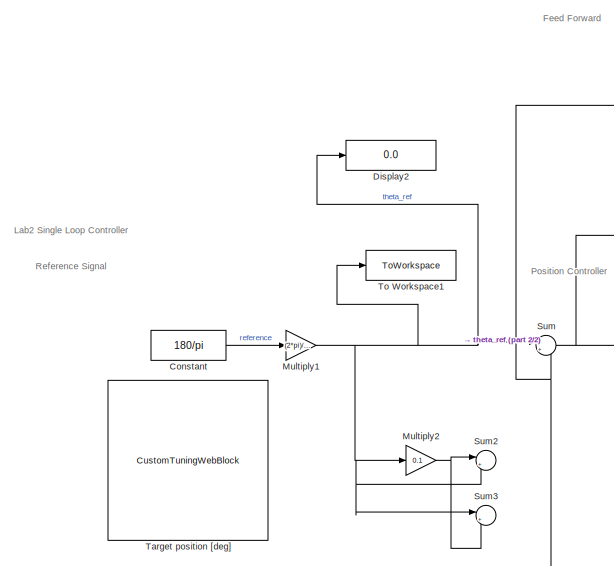
[diagram: root canvas - part 1/2, middle left region]
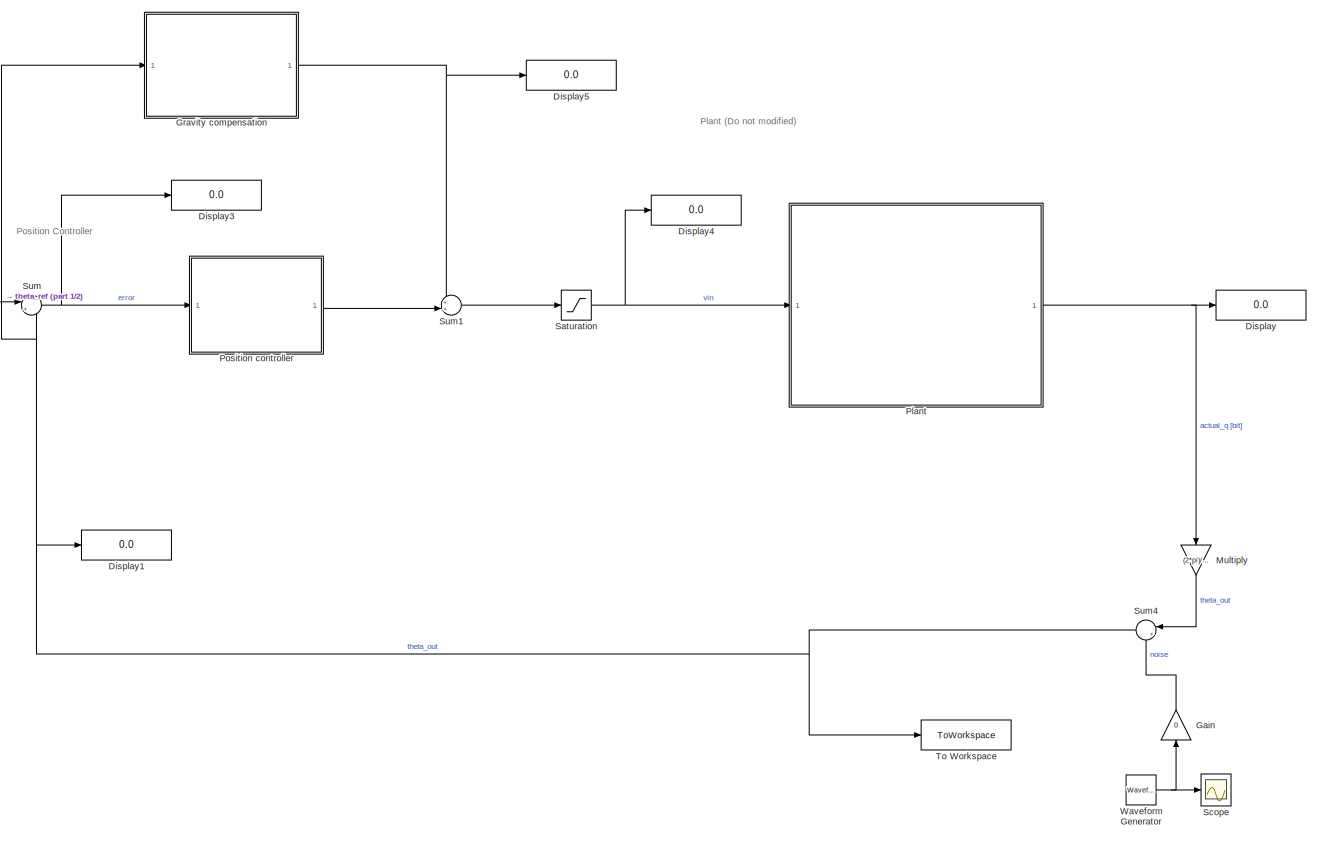
[diagram: root canvas - part 2/2, center side, full height]
MODEL slx_285aa19b5209
KIND model
CONFIG AbsTol = auto
CONFIG EnableMultiTasking = off
CONFIG FixedStep = auto
CONFIG MaxStep = 0.01
CONFIG MinStep = auto
CONFIG RelTol = 1e-3
CONFIG SampleTimeConstraint = Unconstrained
CONFIG SolverName = ode45
CONFIG StartTime = 0.0
CONFIG StopTime = 15
BLOCK [Constant] Constant
  SampleTime = -1
  Value = 180/pi
BLOCK [Display] Display
  Decimation = 1
BLOCK [Display] Display1
  Decimation = 1
BLOCK [Display] Display2
  Decimation = 1
BLOCK [Display] Display3
  Decimation = 1
BLOCK [Display] Display4
  Decimation = 1
BLOCK [Display] Display5
  Decimation = 1
BLOCK [Gain] Gain
  Gain = 0
  NameLocation = right
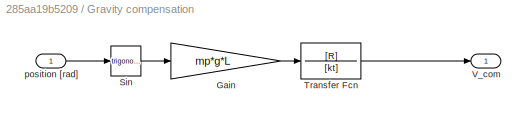
BLOCK [SubSystem] Gravity compensation
BLOCK [Gain] Gravity compensation/Gain
  Gain = mp*g*L
BLOCK [Trigonometry] Gravity compensation/Sin
BLOCK [TransferFcn] Gravity compensation/Transfer Fcn
  Denominator = [kt]
  Numerator = [R]
BLOCK [Outport] Gravity compensation/V_com
BLOCK [Inport] Gravity compensation/position [rad]
BLOCK [Gain] Multiply
  Gain = (2*pi)/4095
  NameLocation = right
BLOCK [Gain] Multiply1
  Gain = (2*pi)/360
BLOCK [Gain] Multiply2
  Gain = 0.1
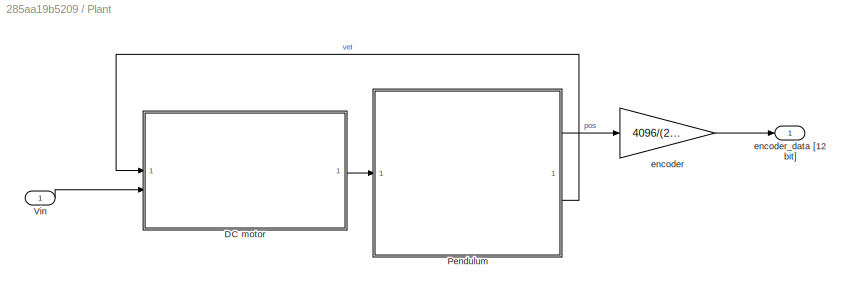
BLOCK [SubSystem] Plant
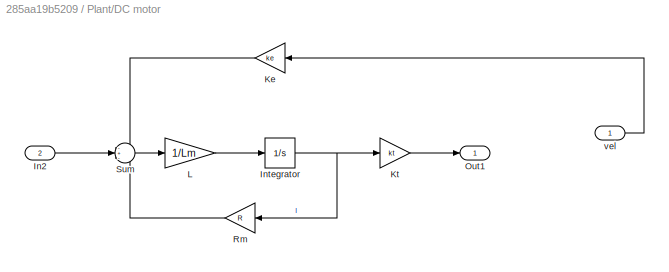
BLOCK [SubSystem] Plant/DC motor
BLOCK [Inport] Plant/DC motor/In2
  Port = 2
BLOCK [Integrator] Plant/DC motor/Integrator
BLOCK [Gain] Plant/DC motor/Ke
  Gain = ke
BLOCK [Gain] Plant/DC motor/Kt
  Gain = kt
BLOCK [Gain] Plant/DC motor/L
  Gain = 1/Lm
BLOCK [Outport] Plant/DC motor/Out1
BLOCK [Gain] Plant/DC motor/Rm
  Gain = R
BLOCK [Sum] Plant/DC motor/Sum
  Inputs = -+-
BLOCK [Inport] Plant/DC motor/vel
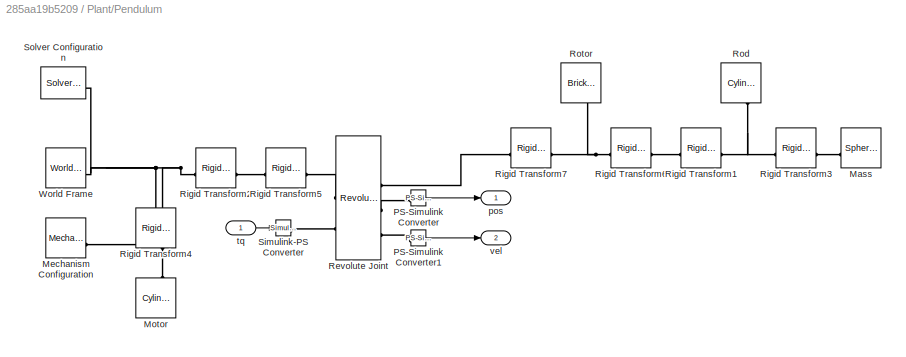
BLOCK [SubSystem] Plant/Pendulum
BLOCK [Reference] Plant/Pendulum/Mass  REF=sm_lib/Body Elements/Spherical Solid
  NameLocation = top
  SourceBlock = sm_lib/Body Elements/Spherical Solid
  SourceType = Spherical Solid
BLOCK [Reference] Plant/Pendulum/Mechanism Configuration  REF=sm_lib/Utilities/Mechanism
Configuration
  SourceBlock = sm_lib/Utilities/Mechanism\nConfiguration
  SourceType = Mechanism\nConfiguration
BLOCK [Reference] Plant/Pendulum/Motor  REF=sm_lib/Body Elements/Cylindrical Solid
  NameLocation = right
  SourceBlock = sm_lib/Body Elements/Cylindrical Solid
  SourceType = Cylindrical Solid
BLOCK [Reference] Plant/Pendulum/PS-Simulink Converter  REF=nesl_utility/PS-Simulink
Converter
  SourceBlock = nesl_utility/PS-Simulink\nConverter
  SourceType = PS-Simulink\nConverter
BLOCK [Reference] Plant/Pendulum/PS-Simulink Converter1  REF=nesl_utility/PS-Simulink
Converter
  SourceBlock = nesl_utility/PS-Simulink\nConverter
  SourceType = PS-Simulink\nConverter
BLOCK [Reference] Plant/Pendulum/Revolute Joint  REF=sm_lib/Joints/Revolute Joint
  SourceBlock = sm_lib/Joints/Revolute Joint
  SourceType = Revolute Joint
BLOCK [Reference] Plant/Pendulum/Rigid Transform1  REF=sm_lib/Frames and
Transforms/Rigid
Transform
  SourceBlock = sm_lib/Frames and\nTransforms/Rigid\nTransform
  SourceType = Rigid\nTransform
BLOCK [Reference] Plant/Pendulum/Rigid Transform2  REF=sm_lib/Frames and
Transforms/Rigid
Transform
  SourceBlock = sm_lib/Frames and\nTransforms/Rigid\nTransform
  SourceType = Rigid\nTransform
BLOCK [Reference] Plant/Pendulum/Rigid Transform3  REF=sm_lib/Frames and
Transforms/Rigid
Transform
  SourceBlock = sm_lib/Frames and\nTransforms/Rigid\nTransform
  SourceType = Rigid\nTransform
BLOCK [Reference] Plant/Pendulum/Rigid Transform4  REF=sm_lib/Frames and
Transforms/Rigid
Transform
  NameLocation = right
  SourceBlock = sm_lib/Frames and\nTransforms/Rigid\nTransform
  SourceType = Rigid\nTransform
BLOCK [Reference] Plant/Pendulum/Rigid Transform5  REF=sm_lib/Frames and
Transforms/Rigid
Transform
  SourceBlock = sm_lib/Frames and\nTransforms/Rigid\nTransform
  SourceType = Rigid\nTransform
BLOCK [Reference] Plant/Pendulum/Rigid Transform6  REF=sm_lib/Frames and
Transforms/Rigid
Transform
  SourceBlock = sm_lib/Frames and\nTransforms/Rigid\nTransform
  SourceType = Rigid\nTransform
BLOCK [Reference] Plant/Pendulum/Rigid Transform7  REF=sm_lib/Frames and
Transforms/Rigid
Transform
  SourceBlock = sm_lib/Frames and\nTransforms/Rigid\nTransform
  SourceType = Rigid\nTransform
BLOCK [Reference] Plant/Pendulum/Rod  REF=sm_lib/Body Elements/Cylindrical Solid
  NameLocation = top
  SourceBlock = sm_lib/Body Elements/Cylindrical Solid
  SourceType = Cylindrical Solid
BLOCK [Reference] Plant/Pendulum/Rotor  REF=sm_lib/Body Elements/Brick Solid
  NameLocation = top
  SourceBlock = sm_lib/Body Elements/Brick Solid
  SourceType = Brick Solid
BLOCK [Reference] Plant/Pendulum/Simulink-PS Converter  REF=nesl_utility/Simulink-PS
Converter
  SourceBlock = nesl_utility/Simulink-PS\nConverter
  SourceType = Simulink-PS\nConverter
BLOCK [Reference] Plant/Pendulum/Solver Configuration  REF=nesl_utility/Solver
Configuration
  SourceBlock = nesl_utility/Solver\nConfiguration
  SourceType = Solver\nConfiguration
BLOCK [Reference] Plant/Pendulum/World Frame  REF=sm_lib/Frames and
Transforms/World Frame
  SourceBlock = sm_lib/Frames and\nTransforms/World Frame
  SourceType = World Frame
BLOCK [Outport] Plant/Pendulum/pos
  NameLocation = right
BLOCK [Inport] Plant/Pendulum/tq
BLOCK [Outport] Plant/Pendulum/vel
  NameLocation = right
  Port = 2
BLOCK [Inport] Plant/Vin
BLOCK [Gain] Plant/encoder
  Gain = 4096/(2*pi)
BLOCK [Outport] Plant/encoder_data [12 bit]
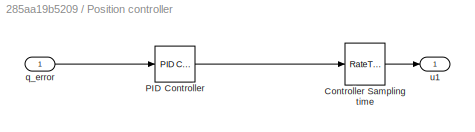
BLOCK [SubSystem] Position controller
BLOCK [RateTransition] Position controller/Controller Sampling time
  OutPortSampleTime = 0.001
BLOCK [Reference] Position controller/PID Controller  REF=slpidlib/PID Controller
  LibrarySourceBlock = simulink/Continuous/PID Controller
  SourceBlock = slpidlib/PID Controller
  SourceType = PID 1dof
BLOCK [Inport] Position controller/q_error
BLOCK [Outport] Position controller/u1
BLOCK [Saturate] Saturation
  LowerLimit = -12
  UpperLimit = 12
BLOCK [Scope] Scope
  Floating = off
  NumInputPorts = 1
  ScopeSpecificationString = Simulink.scopes.TimeScopeBlockCfg('CurrentConfiguration', extmgr.ConfigurationSet(extmgr.Configuration('Core','General UI',true),extmgr.Configuration('Core','Source UI',true),extmgr.Configuration('Sources','WiredSimulink',true),extmgr.Configuration('Visuals','Time Domain',true,'SerializedDisplays',{struct('MinYLimReal','-0.0125','MaxYLimReal','0.0125','YLabelReal','','MinYLimMag','0.00000','MaxYLi...<+1482ch>
BLOCK [Sum] Sum
  Inputs = |+-
BLOCK [Sum] Sum1
  Inputs = ++|
BLOCK [Sum] Sum2
  Inputs = |++
BLOCK [Sum] Sum3
  Inputs = |+-
BLOCK [Sum] Sum4
  Inputs = |++
  NameLocation = top
BLOCK [CustomTuningWebBlock] Target position [deg]
  Configuration = {"components":[{"name":"CircularScaleComponent","settings":{"bounds":{"max":360,"min":0,"tickInterval":30},"direction":"cw","flipLimits":0,"innerRadius":0.6636618227670849,"internalTickHeightScaleFactor":1,"labelColor":[255,255,200],"labelFont":{"font":"Arial","fontSize":12},"labelRadius":0.79,"labelTransparency":1,"minorTickHeightScaleFactor":0.2,"needleImage":{"size":[150,150],"src":"data:image\...<+43666ch>
  LabelPosition = Hide
  ShowInitialText = on
BLOCK [ToWorkspace] To Workspace
  FixptAsFi = on
  MaxDataPoints = inf
  SampleTime = -1
  SaveFormat = Timeseries
  VariableName = out
BLOCK [ToWorkspace] To Workspace1
  FixptAsFi = on
  MaxDataPoints = inf
  SampleTime = -1
  SaveFormat = Timeseries
  VariableName = ref
BLOCK [Reference] Waveform Generator  REF=simulink/Sources/Waveform
Generator
  SourceBlock = simulink/Sources/Waveform\nGenerator
  SourceType = WaveformGenerator
ANNOTATION (root): Feed Forward
ANNOTATION (root): Lab2 Single Loop Controller
ANNOTATION (root): Plant (Do not modified)
ANNOTATION (root): Position Controller
ANNOTATION (root): Reference Signal
LINE Constant:1 -> Multiply1:1
LINE Gain:1 -> Sum4:2
LINE Gravity compensation/Gain:1 -> Gravity compensation/Transfer Fcn:1
LINE Gravity compensation/Sin:1 -> Gravity compensation/Gain:1
LINE Gravity compensation/Transfer Fcn:1 -> Gravity compensation/V_com:1
LINE Gravity compensation/position [rad]:1 -> Gravity compensation/Sin:1
NET Gravity compensation:1 -> Display5:1, Sum1:1
NET Multiply1:1 -> Display2:1, Multiply2:1, Sum2:2, Sum3:1, Sum:1, To Workspace1:1
NET Multiply2:1 -> Sum2:1, Sum3:2
LINE Multiply:1 -> Sum4:1
LINE Plant/DC motor/In2:1 -> Plant/DC motor/Sum:2
NET Plant/DC motor/Integrator:1 -> Plant/DC motor/Kt:1, Plant/DC motor/Rm:1
LINE Plant/DC motor/Ke:1 -> Plant/DC motor/Sum:1
LINE Plant/DC motor/Kt:1 -> Plant/DC motor/Out1:1
LINE Plant/DC motor/L:1 -> Plant/DC motor/Integrator:1
LINE Plant/DC motor/Rm:1 -> Plant/DC motor/Sum:3
LINE Plant/DC motor/Sum:1 -> Plant/DC motor/L:1
LINE Plant/DC motor/vel:1 -> Plant/DC motor/Ke:1
LINE Plant/DC motor:1 -> Plant/Pendulum:1
LINE Plant/Pendulum/PS-Simulink Converter1:1 -> Plant/Pendulum/vel:1
LINE Plant/Pendulum/PS-Simulink Converter:1 -> Plant/Pendulum/pos:1
LINE Plant/Pendulum/tq:1 -> Plant/Pendulum/Simulink-PS Converter:1
LINE Plant/Pendulum:1 -> Plant/encoder:1
LINE Plant/Pendulum:2 -> Plant/DC motor:1
LINE Plant/Vin:1 -> Plant/DC motor:2
LINE Plant/encoder:1 -> Plant/encoder_data [12 bit]:1
NET Plant:1 -> Display:1, Multiply:1
LINE Position controller/Controller Sampling time:1 -> Position controller/u1:1
LINE Position controller/PID Controller:1 -> Position controller/Controller Sampling time:1
LINE Position controller/q_error:1 -> Position controller/PID Controller:1
LINE Position controller:1 -> Sum1:2
NET Saturation:1 -> Display4:1, Plant:1
LINE Sum1:1 -> Saturation:1
NET Sum4:1 -> Display1:1, Gravity compensation:1, Sum:2, To Workspace:1
NET Sum:1 -> Display3:1, Position controller:1
NET Waveform Generator:1 -> Gain:1, Scope:1
PLINE Plant/Pendulum/Mass:RConn1 -- Plant/Pendulum/Rigid Transform3:RConn1
PNET net1: Plant/Pendulum/Mechanism Configuration:RConn1 -- Plant/Pendulum/Rigid Transform2:LConn1 -- Plant/Pendulum/Rigid Transform4:LConn1 -- Plant/Pendulum/Solver Configuration:RConn1 -- Plant/Pendulum/World Frame:RConn1
PLINE Plant/Pendulum/Motor:RConn1 -- Plant/Pendulum/Rigid Transform4:RConn1
PLINE Plant/Pendulum/PS-Simulink Converter1:LConn1 -- Plant/Pendulum/Revolute Joint:RConn3
PLINE Plant/Pendulum/PS-Simulink Converter:LConn1 -- Plant/Pendulum/Revolute Joint:RConn2
PLINE Plant/Pendulum/Revolute Joint:LConn1 -- Plant/Pendulum/Rigid Transform5:RConn1
PLINE Plant/Pendulum/Revolute Joint:LConn2 -- Plant/Pendulum/Simulink-PS Converter:RConn1
PLINE Plant/Pendulum/Revolute Joint:RConn1 -- Plant/Pendulum/Rigid Transform7:LConn1
PLINE Plant/Pendulum/Rigid Transform1:LConn1 -- Plant/Pendulum/Rigid Transform6:RConn1
PNET net2: Plant/Pendulum/Rigid Transform1:RConn1 -- Plant/Pendulum/Rigid Transform3:LConn1 -- Plant/Pendulum/Rod:RConn1
PLINE Plant/Pendulum/Rigid Transform2:RConn1 -- Plant/Pendulum/Rigid Transform5:LConn1
PNET net3: Plant/Pendulum/Rigid Transform6:LConn1 -- Plant/Pendulum/Rigid Transform7:RConn1 -- Plant/Pendulum/Rotor:RConn1
note: NET lines group one-source signal fan-out (src -> all destinations, sorted); 1:1 wires keep LINE; PNET lines group multi-terminal physical nets as a canonical sorted terminal list (undirected conserving connections); 2-terminal nets keep the pairwise PLINE form
